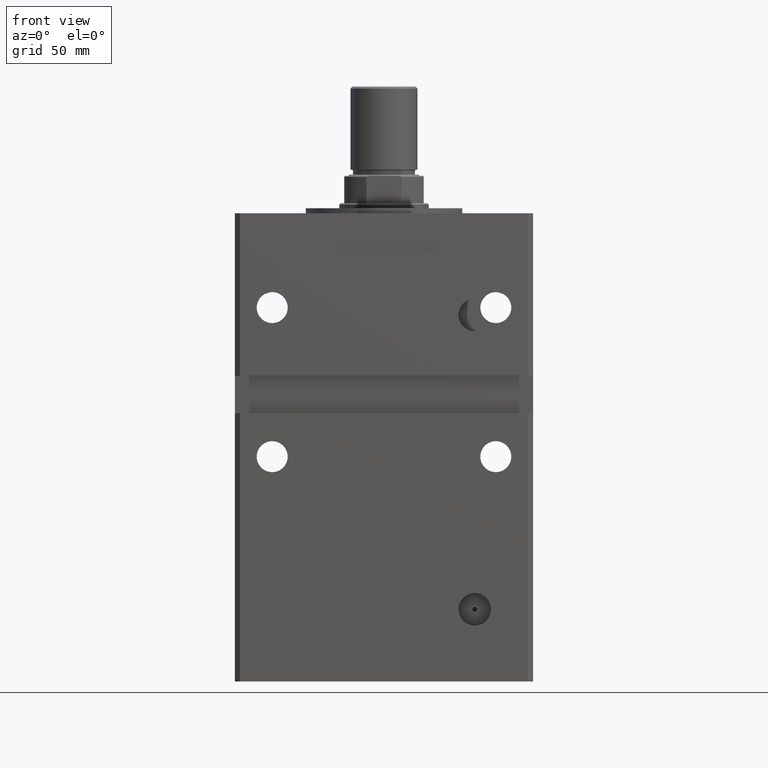
[diagram: clean part render]
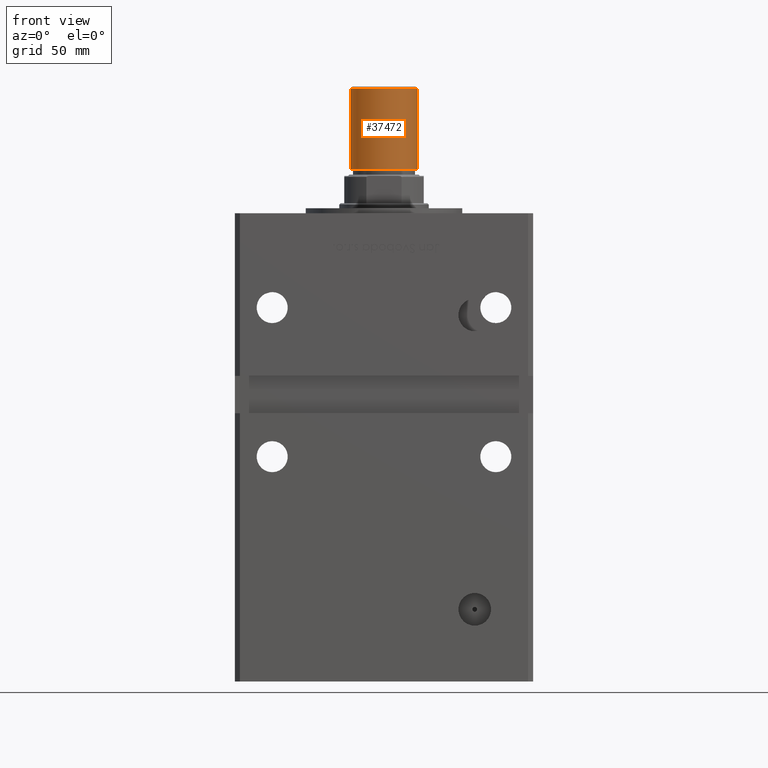
[diagram: same view with one face highlighted and labeled with its STEP entity id]
A machine part, front view. The second image highlights one B-rep face of the part: STEP entity #37472.
In plain terms, the highlighted cylindrical surface (edge-blend (fillet) strip) has radius 13.5 mm, axis along (0, -0, 1).
Its self-contained STEP definition (entity closure, byte-faithful):
#7515 = VECTOR ( 'NONE', #37220, 1000.000000000000000 ) ;
#9479 = AXIS2_PLACEMENT_3D ( 'NONE', #23229, #40737, #50477 ) ;
#13575 = EDGE_CURVE ( 'NONE', #33621, #41620, #24030, .T. ) ;
#16066 = DIRECTION ( 'NONE',  ( -0.000000000000000000, -0.000000000000000000, -1.000000000000000000 ) ) ;
#16308 = EDGE_CURVE ( 'NONE', #41620, #47093, #37899, .T. ) ;
#16949 = CIRCLE ( 'NONE', #43495, 13.50000000000000000 ) ;
#17677 = CARTESIAN_POINT ( 'NONE',  ( 13.50000000000000000, 1.653273178848926867E-15, 0.7999999999999951594 ) ) ;
#21085 = CARTESIAN_POINT ( 'NONE',  ( -13.50000000000000000, 0.000000000000000000, 0.7999999999999951594 ) ) ;
#22073 = VECTOR ( 'NONE', #23723, 1000.000000000000000 ) ;
#23229 = CARTESIAN_POINT ( 'NONE',  ( 0.000000000000000000, 0.000000000000000000, 0.7999999999999951594 ) ) ;
#23638 = CARTESIAN_POINT ( 'NONE',  ( -13.50000000000000000, 0.000000000000000000, 33.50000000000000000 ) ) ;
#23723 = DIRECTION ( 'NONE',  ( -0.000000000000000000, -0.000000000000000000, -1.000000000000000000 ) ) ;
#24030 = LINE ( 'NONE', #32627, #7515 ) ;
#27455 = LINE ( 'NONE', #50142, #22073 ) ;
#27957 = EDGE_CURVE ( 'NONE', #50818, #47093, #27455, .T. ) ;
#31347 = ORIENTED_EDGE ( 'NONE', *, *, #16308, .T. ) ;
#32627 = CARTESIAN_POINT ( 'NONE',  ( -13.50000000000000000, 0.000000000000000000, 33.50000000000000000 ) ) ;
#33621 = VERTEX_POINT ( 'NONE', #23638 ) ;
#37006 = CYLINDRICAL_SURFACE ( 'NONE', #47969, 13.50000000000000000 ) ;
#37220 = DIRECTION ( 'NONE',  ( -0.000000000000000000, -0.000000000000000000, -1.000000000000000000 ) ) ;
#37317 = CARTESIAN_POINT ( 'NONE',  ( 0.000000000000000000, 0.000000000000000000, 33.50000000000000000 ) ) ;
#37472 = ADVANCED_FACE ( 'NONE', ( #37867 ), #37006, .T. ) ;
#37867 = FACE_OUTER_BOUND ( 'NONE', #44160, .T. ) ;
#37899 = CIRCLE ( 'NONE', #9479, 13.50000000000000000 ) ;
#40737 = DIRECTION ( 'NONE',  ( -0.000000000000000000, -0.000000000000000000, 1.000000000000000000 ) ) ;
#40791 = DIRECTION ( 'NONE',  ( 1.000000000000000000, 0.000000000000000000, 0.000000000000000000 ) ) ;
#40798 = EDGE_CURVE ( 'NONE', #33621, #50818, #16949, .T. ) ;
#41620 = VERTEX_POINT ( 'NONE', #21085 ) ;
#43495 = AXIS2_PLACEMENT_3D ( 'NONE', #37317, #54541, #40791 ) ;
#44160 = EDGE_LOOP ( 'NONE', ( #49397, #54805, #49481, #31347 ) ) ;
#47093 = VERTEX_POINT ( 'NONE', #17677 ) ;
#47969 = AXIS2_PLACEMENT_3D ( 'NONE', #55355, #16066, #54513 ) ;
#49397 = ORIENTED_EDGE ( 'NONE', *, *, #27957, .F. ) ;
#49481 = ORIENTED_EDGE ( 'NONE', *, *, #13575, .T. ) ;
#50142 = CARTESIAN_POINT ( 'NONE',  ( 13.50000000000000000, 1.653273178848926867E-15, 33.50000000000000000 ) ) ;
#50477 = DIRECTION ( 'NONE',  ( 1.000000000000000000, 0.000000000000000000, 0.000000000000000000 ) ) ;
#50818 = VERTEX_POINT ( 'NONE', #56358 ) ;
#54513 = DIRECTION ( 'NONE',  ( -1.000000000000000000, 0.000000000000000000, 0.000000000000000000 ) ) ;
#54541 = DIRECTION ( 'NONE',  ( 0.000000000000000000, 0.000000000000000000, 1.000000000000000000 ) ) ;
#54805 = ORIENTED_EDGE ( 'NONE', *, *, #40798, .F. ) ;
#55355 = CARTESIAN_POINT ( 'NONE',  ( 0.000000000000000000, 0.000000000000000000, 33.50000000000000000 ) ) ;
#56358 = CARTESIAN_POINT ( 'NONE',  ( 13.50000000000000000, 1.653273178848926867E-15, 33.50000000000000000 ) ) ;